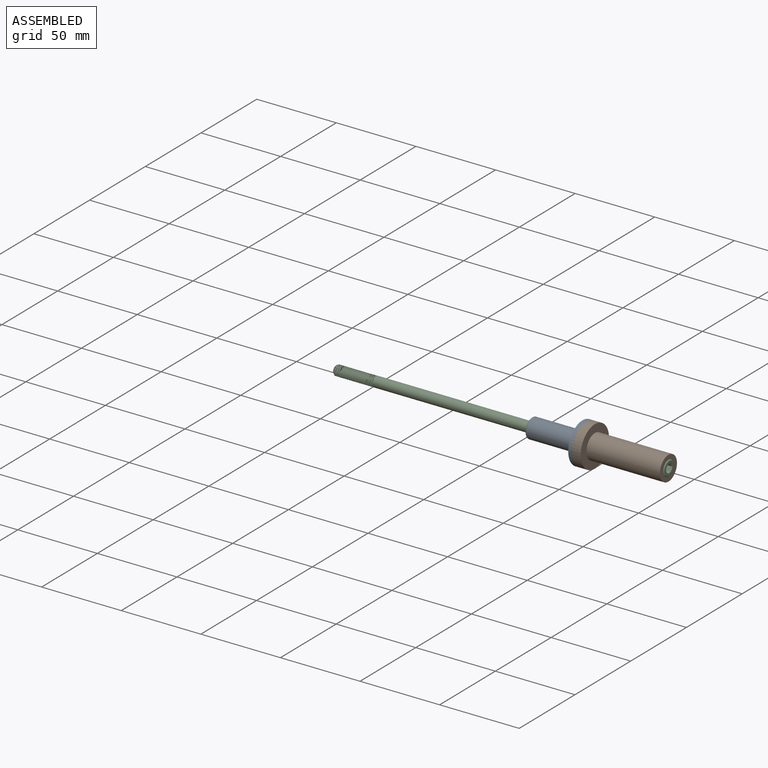
[diagram: assembled view]
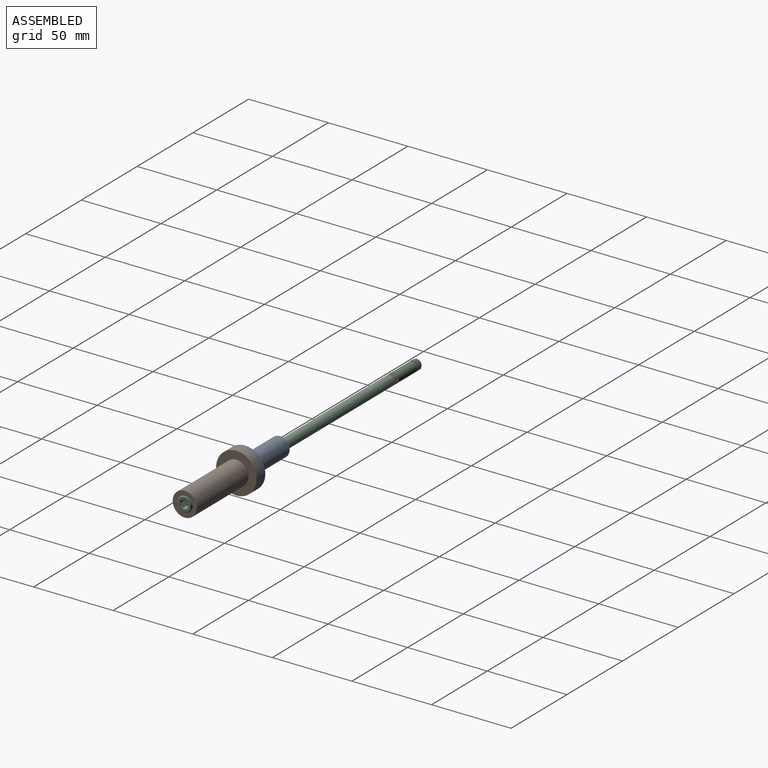
[diagram: assembled view, second angle]
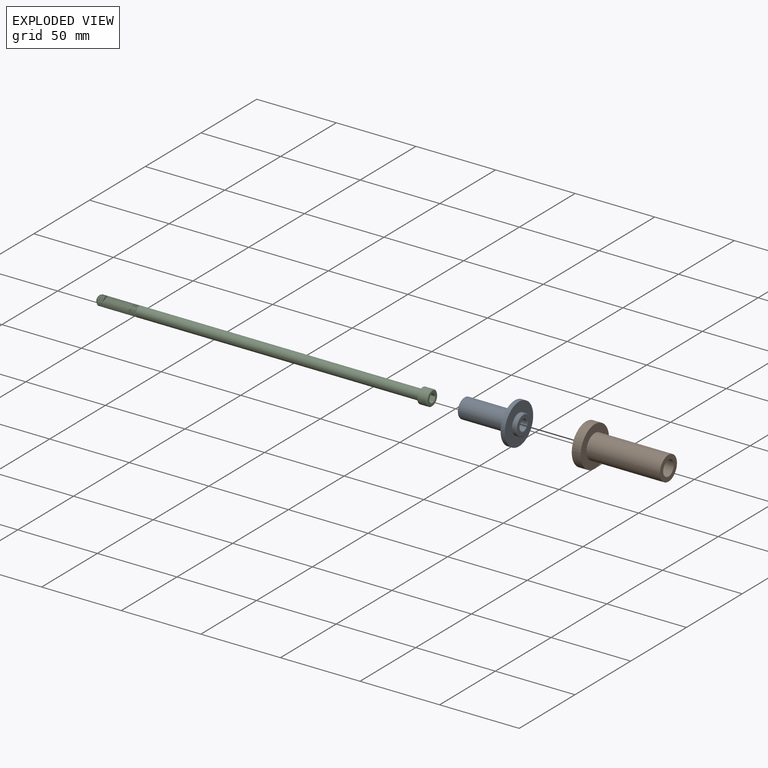
[diagram: exploded view]
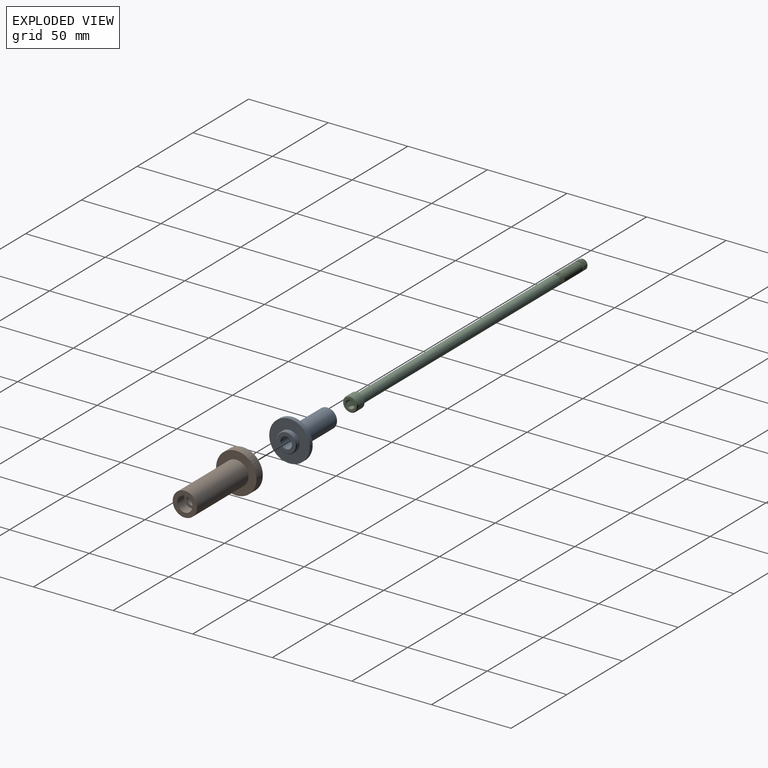
[diagram: exploded view, second angle]
ASSEMBLY  parts=3 mates=2
PART A: 12 faces, bbox 37.3x25.4x25.4 mm
  f0: plane 10.72x10.72mm, normal (-1,0,0), area 57.3mm2, adj f4,f5
  f1: cylinder r=12.7mm len=25.4mm, axis (-1,0,0), area 218.9mm2, adj f2,f7
  f2: plane 25.4x25.4mm, normal (-1,0,0), area 368.6mm2, adj f1,f6
  f3: cylinder r=6.12mm len=30.48mm, axis (-1,0,0), area 1172.3mm2, adj f5,f6
  f4: cylinder r=3.24mm len=36.8mm, axis (1,0,0), area 748.9mm2, adj f0,f10
  f5: torus R=5.36mm, axis (1,0,0), area 44mm2, adj f0,f3
  f6: torus R=6.63mm, axis (1,0,0), area 31.6mm2, adj f2,f3
  f7: plane 25.4x25.4mm, normal (1,0,0), area 380mm2, adj f1,f9
  f8: plane 11.68x11.68mm, normal (1,0,0), area 63.1mm2, adj f10,f11
  f9: cylinder r=6.35mm len=12.7mm, axis (-1,0,0), area 92.2mm2, adj f7,f11
  f10: torus R=3.75mm, axis (-1,0,0), area 17.2mm2, adj f4,f8
  f11: torus R=5.84mm, axis (-1,0,0), area 30.9mm2, adj f8,f9
PART B: 10 faces, bbox 51.9x25.4x25.4 mm
  f0: plane 15.24x15.24mm, normal (1,0,0), area 110.4mm2, adj f1,f8
  f1: cylinder r=7.62mm len=46.23mm, axis (1,0,0), area 2213.3mm2, adj f0,f2
  f2: plane 25.4x25.4mm, normal (1,0,0), area 324.3mm2, adj f1,f3
  f3: cylinder r=12.7mm len=25.4mm, axis (1,0,0), area 450mm2, adj f2,f4
  f4: plane 25.4x25.4mm, normal (-1,0,0), area 380mm2, adj f3,f5
  f5: cylinder r=6.35mm len=12.7mm, axis (1,0,0), area 112.5mm2, adj f4,f6
  f6: plane 12.7x12.7mm, normal (-1,0,0), area 93.7mm2, adj f5,f7
  f7: cylinder r=3.24mm len=42.7mm, axis (1,0,0), area 868.8mm2, adj f6,f9
  f8: cylinder r=4.79mm len=9.58mm, axis (1,0,0), area 191mm2, adj f0,f9
  f9: plane 9.58x9.58mm, normal (1,0,0), area 39.1mm2, adj f7,f8
PART C: 45 faces, bbox 10.6x10.6x211.1 mm
  f0: cylinder r=2.35mm len=24.97mm, axis (0,0,-1), area 27.7mm2, adj f1,f2,f25,f26
  f1: bspline ~25.66x7.33mm, area 322.2mm2, adj f0,f3,f4,f5,f6,f7,f8,f9
  f2: bspline ~26.51x7.33mm, area 311mm2, adj f0,f3,f4,f5,f6,f7,f8,f9
  f3: cylinder r=3.17mm len=178.12mm, axis (0,0,1), area 3547.5mm2, adj f1,f2,f4,f26,f29
  f4: cylinder r=3.17mm len=6.35mm, axis (0,0,1), area 3.2mm2, adj f1,f2,f3,f5
  f5: cylinder r=3.17mm len=6.35mm, axis (0,0,1), area 3.2mm2, adj f1,f2,f4,f6
  f6: cylinder r=3.17mm len=6.35mm, axis (0,0,1), area 3.2mm2, adj f1,f2,f5,f7
  f7: cylinder r=3.17mm len=6.35mm, axis (0,0,1), area 3.2mm2, adj f1,f2,f6,f8
  f8: cylinder r=3.17mm len=6.35mm, axis (0,0,1), area 3.2mm2, adj f1,f2,f7,f9
  f9: cylinder r=3.17mm len=6.35mm, axis (0,0,1), area 3.2mm2, adj f1,f2,f8,f10
  f10: cylinder r=3.17mm len=6.35mm, axis (0,0,1), area 3.2mm2, adj f1,f2,f9,f11
  f11: cylinder r=3.17mm len=6.35mm, axis (0,0,1), area 3.2mm2, adj f1,f2,f10,f12
  f12: cylinder r=3.17mm len=6.35mm, axis (0,0,1), area 3.2mm2, adj f1,f2,f11,f13
  f13: cylinder r=3.17mm len=6.35mm, axis (0,0,1), area 3.2mm2, adj f1,f2,f12,f14
  f14: cylinder r=3.17mm len=6.35mm, axis (0,0,1), area 3.2mm2, adj f1,f2,f13,f15
  f15: cylinder r=3.17mm len=6.35mm, axis (0,0,1), area 3.2mm2, adj f1,f2,f14,f16
  f16: cylinder r=3.17mm len=6.35mm, axis (0,0,1), area 3.2mm2, adj f1,f2,f15,f17
  f17: cylinder r=3.17mm len=6.35mm, axis (0,0,1), area 3.2mm2, adj f1,f2,f16,f18
  f18: cylinder r=3.17mm len=6.35mm, axis (0,0,1), area 3.2mm2, adj f1,f2,f17,f19
  f19: cylinder r=3.17mm len=6.35mm, axis (0,0,1), area 3.2mm2, adj f1,f2,f18,f20
  f20: cylinder r=3.17mm len=6.35mm, axis (0,0,1), area 3.2mm2, adj f1,f2,f19,f21
  f21: cylinder r=3.17mm len=6.35mm, axis (0,0,1), area 3.2mm2, adj f1,f2,f20,f22
  f22: cylinder r=3.17mm len=6.35mm, axis (0,0,1), area 3.2mm2, adj f1,f2,f21,f23
  f23: cylinder r=3.17mm len=2.27mm, axis (0,0,1), area 0.2mm2, adj f2,f22,f25
  f24: plane 4.45x4.45mm, normal (0,0,1), area 15.5mm2, adj f25
  f25: cone r=2.22mm half-angle=45deg, axis (0,0,-1), area 12.3mm2, adj f0,f1,f2,f23,f24
  f26: cone r=3.17mm half-angle=70deg, axis (0,0,-1), area 7.9mm2, adj f0,f1,f2,f3
  f27: cylinder r=4.76mm len=9.53mm, axis (0,0,1), area 168.6mm2, adj f43,f44
  f28: plane 8.57x8.57mm, normal (0,0,-1), area 34mm2, adj f30,f31,f32,f33,f34,f35,f43
  f29: plane 9.05x9.05mm, normal (0,0,1), area 32.6mm2, adj f3,f44
  f30: cone r=2.75mm half-angle=45deg, axis (0,0,-1), area 0mm2, adj f28,f37
  f31: cone r=2.75mm half-angle=45deg, axis (0,0,-1), area 0mm2, adj f28,f38
  f32: cone r=2.75mm half-angle=45deg, axis (0,0,-1), area 0mm2, adj f28,f39
  f33: cone r=2.75mm half-angle=45deg, axis (0,0,-1), area 0mm2, adj f28,f40
  f34: cone r=2.75mm half-angle=45deg, axis (0,0,-1), area 0mm2, adj f28,f41
  f35: cone r=2.75mm half-angle=45deg, axis (0,0,-1), area 0mm2, adj f28,f42
  f36: plane 5.5x4.76mm, normal (0,0,-1), area 19.6mm2, adj f37,f38,f39,f40,f41,f42
  f37: plane 4.61x3.42mm, normal (-0.5,-0.87,0), area 9.2mm2, adj f30,f36,f38,f42
  f38: plane 4.62x3.8mm, normal (-1,0,0), area 9.2mm2, adj f31,f36,f37,f39
  f39: plane 4.61x3.42mm, normal (-0.5,0.87,0), area 9.2mm2, adj f32,f36,f38,f40
  f40: plane 4.61x3.42mm, normal (0.5,0.87,0), area 9.2mm2, adj f33,f36,f39,f41
  f41: plane 4.62x3.8mm, normal (1,0,0), area 9.2mm2, adj f34,f36,f40,f42
  f42: plane 4.61x3.42mm, normal (0.5,-0.87,0), area 9.2mm2, adj f35,f36,f37,f41
  f43: cone r=4.29mm half-angle=45deg, axis (0,0,1), area 19.1mm2, adj f27,f28
  f44: cone r=4.76mm half-angle=45deg, axis (0,0,-1), area 9.8mm2, adj f27,f29
PLACE A t=(1.3,-24.4,20.91)mm
PLACE B t=(0.79,-24.4,20.91)mm
PLACE C rot(axis=(0,-1,0),90deg) t=(-208.28,-24.4,20.91)mm
MATE fastened B.f1 <-> C.f0  axis (1,0,0) through (0.79,-24.4,20.91)mm
MATE fastened B.f1 <-> A.f1  axis (1,0,0) through (-48.25,-24.4,20.91)mm
